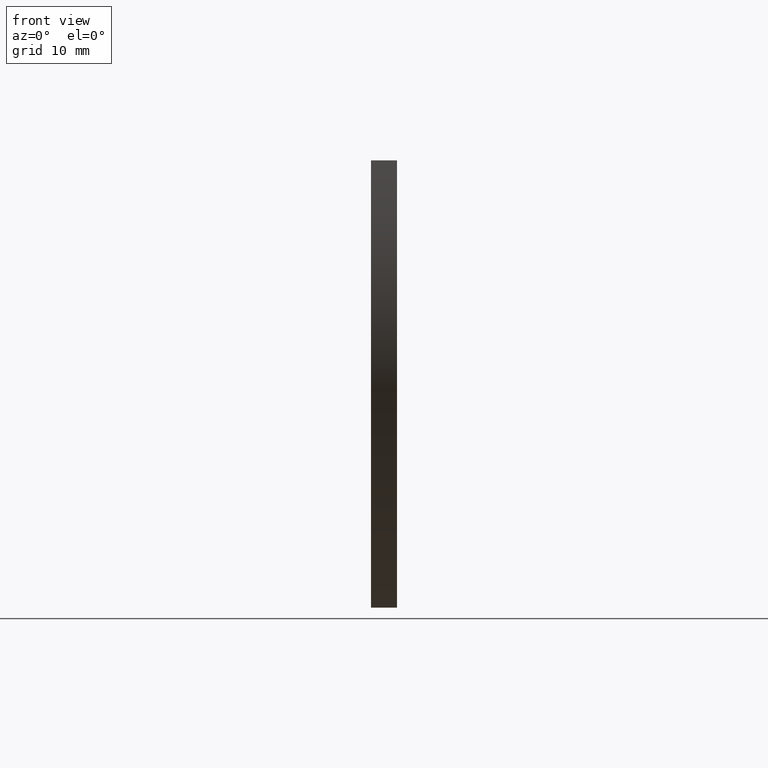
[diagram: clean part render]
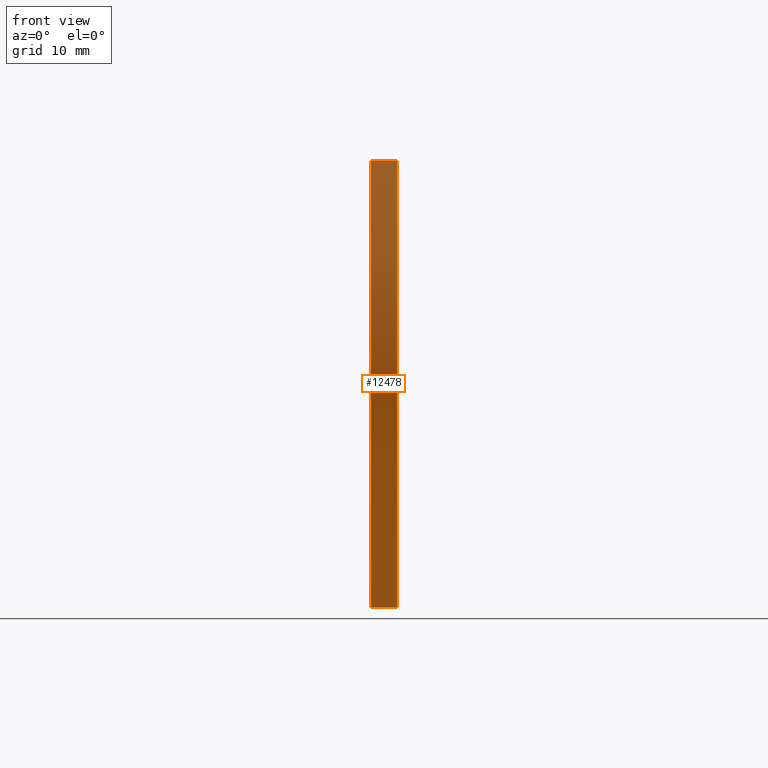
[diagram: same view with one face highlighted and labeled with its STEP entity id]
A machine part, front view. The second image highlights one B-rep face of the part: STEP entity #12478.
In plain terms, the highlighted cylindrical surface (partial cylindrical patch) has radius 90 mm, axis along (-1, -0, -0).
Its self-contained STEP definition (entity closure, byte-faithful):
#313 = DIRECTION ( 'NONE',  ( 0.000000000000000000, 0.000000000000000000, -1.000000000000000000 ) ) ;
#1414 = CARTESIAN_POINT ( 'NONE',  ( 2.000000000000000000, 62.51953627538633640, 20.98405990606523730 ) ) ;
#1555 = CYLINDRICAL_SURFACE ( 'NONE', #12247, 90.00000000000000000 ) ;
#1626 = CARTESIAN_POINT ( 'NONE',  ( 2.000000000000000000, 64.21333756882717125, -69.00000000000000000 ) ) ;
#1698 = VECTOR ( 'NONE', #7017, 1000.000000000000000 ) ;
#1756 = DIRECTION ( 'NONE',  ( 0.000000000000000000, 0.000000000000000000, 1.000000000000000000 ) ) ;
#2486 = LINE ( 'NONE', #10120, #1698 ) ;
#2574 = CIRCLE ( 'NONE', #6753, 90.00000000000000000 ) ;
#2958 = FACE_OUTER_BOUND ( 'NONE', #9205, .T. ) ;
#3658 = EDGE_CURVE ( 'NONE', #5251, #5543, #10803, .T. ) ;
#4293 = VERTEX_POINT ( 'NONE', #7653 ) ;
#4317 = ORIENTED_EDGE ( 'NONE', *, *, #5286, .F. ) ;
#5025 = CARTESIAN_POINT ( 'NONE',  ( -2.000000000000000000, -25.00000000000000000, 0.000000000000000000 ) ) ;
#5251 = VERTEX_POINT ( 'NONE', #11058 ) ;
#5286 = EDGE_CURVE ( 'NONE', #4293, #5251, #9117, .T. ) ;
#5543 = VERTEX_POINT ( 'NONE', #8372 ) ;
#5574 = ORIENTED_EDGE ( 'NONE', *, *, #3658, .F. ) ;
#6064 = VERTEX_POINT ( 'NONE', #5025 ) ;
#6753 = AXIS2_PLACEMENT_3D ( 'NONE', #12598, #10478, #7641 ) ;
#6770 = DIRECTION ( 'NONE',  ( -1.000000000000000000, -0.000000000000000000, -0.000000000000000000 ) ) ;
#7017 = DIRECTION ( 'NONE',  ( -1.000000000000000000, -0.000000000000000000, -0.000000000000000000 ) ) ;
#7641 = DIRECTION ( 'NONE',  ( 0.000000000000000000, 0.000000000000000000, -1.000000000000000000 ) ) ;
#7653 = CARTESIAN_POINT ( 'NONE',  ( 2.000000000000000000, -25.00000000000000000, 0.000000000000000000 ) ) ;
#7869 = VECTOR ( 'NONE', #11489, 1000.000000000000000 ) ;
#7884 = AXIS2_PLACEMENT_3D ( 'NONE', #1414, #8340, #313 ) ;
#8257 = EDGE_CURVE ( 'NONE', #6064, #5543, #2574, .T. ) ;
#8340 = DIRECTION ( 'NONE',  ( 1.000000000000000000, 0.000000000000000000, 0.000000000000000000 ) ) ;
#8372 = CARTESIAN_POINT ( 'NONE',  ( -2.000000000000000000, 64.21333756882717125, -69.00000000000000000 ) ) ;
#9117 = CIRCLE ( 'NONE', #7884, 90.00000000000000000 ) ;
#9205 = EDGE_LOOP ( 'NONE', ( #10042, #5574, #4317, #12627 ) ) ;
#10042 = ORIENTED_EDGE ( 'NONE', *, *, #8257, .T. ) ;
#10120 = CARTESIAN_POINT ( 'NONE',  ( 2.000000000000000000, -25.00000000000000000, 0.000000000000000000 ) ) ;
#10478 = DIRECTION ( 'NONE',  ( 1.000000000000000000, 0.000000000000000000, 0.000000000000000000 ) ) ;
#10803 = LINE ( 'NONE', #1626, #7869 ) ;
#11058 = CARTESIAN_POINT ( 'NONE',  ( 2.000000000000000000, 64.21333756882717125, -69.00000000000000000 ) ) ;
#11489 = DIRECTION ( 'NONE',  ( -1.000000000000000000, -0.000000000000000000, -0.000000000000000000 ) ) ;
#11751 = EDGE_CURVE ( 'NONE', #4293, #6064, #2486, .T. ) ;
#12247 = AXIS2_PLACEMENT_3D ( 'NONE', #12715, #6770, #1756 ) ;
#12478 = ADVANCED_FACE ( 'NONE', ( #2958 ), #1555, .T. ) ;
#12598 = CARTESIAN_POINT ( 'NONE',  ( -2.000000000000000000, 62.51953627538633640, 20.98405990606523730 ) ) ;
#12627 = ORIENTED_EDGE ( 'NONE', *, *, #11751, .T. ) ;
#12715 = CARTESIAN_POINT ( 'NONE',  ( 2.000000000000000000, 62.51953627538633640, 20.98405990606523730 ) ) ;